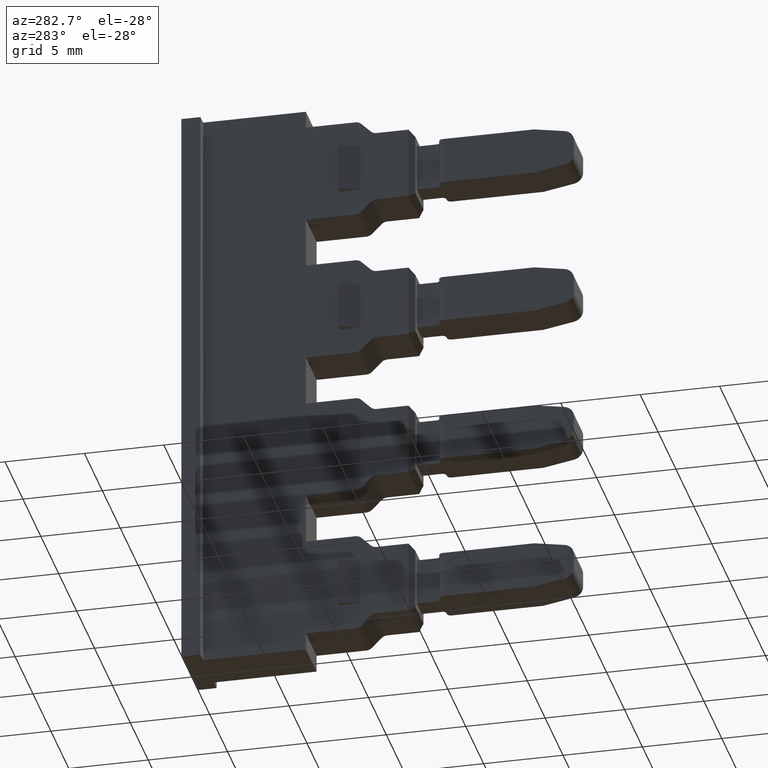
[diagram: clean part render]
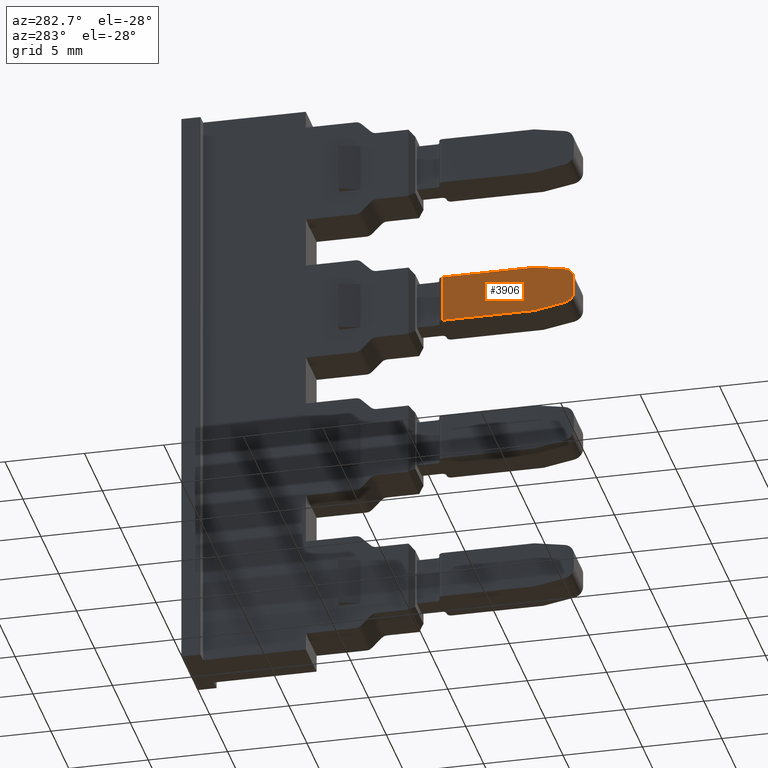
[diagram: same view with one face highlighted and labeled with its STEP entity id]
A machine part, auxiliary view. The second image highlights one B-rep face of the part: STEP entity #3906.
In plain terms, the highlighted planar face has unit normal (1, 0, 0).
Its self-contained STEP definition (entity closure, byte-faithful):
#508 = EDGE_LOOP ( 'NONE', ( #1287, #1284, #1301, #1322, #1326, #1295, #1290, #1317 ) ) ;
#1284 = ORIENTED_EDGE ( 'NONE', *, *, #3497, .F. ) ;
#1287 = ORIENTED_EDGE ( 'NONE', *, *, #3561, .F. ) ;
#1290 = ORIENTED_EDGE ( 'NONE', *, *, #3548, .F. ) ;
#1295 = ORIENTED_EDGE ( 'NONE', *, *, #3563, .F. ) ;
#1301 = ORIENTED_EDGE ( 'NONE', *, *, #3471, .F. ) ;
#1317 = ORIENTED_EDGE ( 'NONE', *, *, #3562, .F. ) ;
#1322 = ORIENTED_EDGE ( 'NONE', *, *, #3468, .F. ) ;
#1326 = ORIENTED_EDGE ( 'NONE', *, *, #3533, .T. ) ;
#1611 = VERTEX_POINT ( 'NONE', #1937 ) ;
#1618 = VERTEX_POINT ( 'NONE', #1910 ) ;
#1649 = VERTEX_POINT ( 'NONE', #1993 ) ;
#1658 = VERTEX_POINT ( 'NONE', #2030 ) ;
#1684 = VERTEX_POINT ( 'NONE', #1987 ) ;
#1686 = VERTEX_POINT ( 'NONE', #2007 ) ;
#1691 = VERTEX_POINT ( 'NONE', #2017 ) ;
#1697 = VERTEX_POINT ( 'NONE', #2026 ) ;
#1910 = CARTESIAN_POINT ( 'NONE',  ( 109.4251171002644600, 225.8069065328585300, 41.03482381499117800 ) ) ;
#1937 = CARTESIAN_POINT ( 'NONE',  ( 109.4251171002644400, 225.8069065328585300, 41.97844942780033500 ) ) ;
#1987 = CARTESIAN_POINT ( 'NONE',  ( 109.4251171002642300, 228.3069065328595600, 43.00663662139585600 ) ) ;
#1993 = CARTESIAN_POINT ( 'NONE',  ( 109.4251171002644200, 226.3853528084917500, 42.66781485490891900 ) ) ;
#2007 = CARTESIAN_POINT ( 'NONE',  ( 109.4251171002637500, 234.0815789080008600, 43.00663662139593400 ) ) ;
#2017 = CARTESIAN_POINT ( 'NONE',  ( 109.4251171002642600, 228.3069065328583300, 40.00663662139602600 ) ) ;
#2026 = CARTESIAN_POINT ( 'NONE',  ( 109.4251171002644400, 226.3853528084916000, 40.34545838788263700 ) ) ;
#2030 = CARTESIAN_POINT ( 'NONE',  ( 109.4251171002637800, 234.0815789080008600, 40.00663662139597700 ) ) ;
#2948 = FACE_OUTER_BOUND ( 'NONE', #508, .T. ) ;
#2955 = CARTESIAN_POINT ( 'NONE',  ( 109.4251171002638800, 234.7827890380838200, 18.83752599205733300 ) ) ;
#2957 = DIRECTION ( 'NONE',  ( 1.000000000000000000, 8.429940185974499800E-014, 7.193572994222956300E-015 ) ) ;
#2958 = DIRECTION ( 'NONE',  ( -8.429940185974499800E-014, 1.000000000000000000, 0.0000000000000000000 ) ) ;
#2960 = PLANE ( 'NONE',  #5674 ) ;
#3468 = EDGE_CURVE ( 'NONE', #1618, #1697, #5842, .T. ) ;
#3471 = EDGE_CURVE ( 'NONE', #1697, #1691, #4753, .T. ) ;
#3497 = EDGE_CURVE ( 'NONE', #1691, #1658, #4793, .T. ) ;
#3533 = EDGE_CURVE ( 'NONE', #1618, #1611, #4880, .T. ) ;
#3548 = EDGE_CURVE ( 'NONE', #1684, #1649, #4957, .T. ) ;
#3561 = EDGE_CURVE ( 'NONE', #1658, #1686, #4996, .T. ) ;
#3562 = EDGE_CURVE ( 'NONE', #1686, #1684, #5015, .T. ) ;
#3563 = EDGE_CURVE ( 'NONE', #1649, #1611, #5311, .T. ) ;
#3906 = ADVANCED_FACE ( 'NONE', ( #2948 ), #2960, .F. ) ;
#4743 = DIRECTION ( 'NONE',  ( -8.534938901464416100E-014, 0.9848077530122113500, -0.1736481776669117900 ) ) ;
#4747 = CARTESIAN_POINT ( 'NONE',  ( 109.4251171002644400, 226.5069065328585500, 41.03482381499117100 ) ) ;
#4748 = CARTESIAN_POINT ( 'NONE',  ( 109.4251171002644300, 226.3853528084914600, 40.34545838788265800 ) ) ;
#4751 = DIRECTION ( 'NONE',  ( 1.982541115402047700E-014, -1.000000000000000000, 0.0000000000000000000 ) ) ;
#4753 = LINE ( 'NONE', #4748, #5806 ) ;
#4770 = DIRECTION ( 'NONE',  ( 1.000000000000000000, 2.643655590711540000E-014, 7.193572994224081300E-015 ) ) ;
#4793 = LINE ( 'NONE', #4804, #5160 ) ;
#4804 = CARTESIAN_POINT ( 'NONE',  ( 109.4251171002637200, 234.7827890380838200, 40.00663662139597700 ) ) ;
#4864 = DIRECTION ( 'NONE',  ( -8.429940185974499800E-014, 1.000000000000000000, 0.0000000000000000000 ) ) ;
#4880 = LINE ( 'NONE', #4932, #5258 ) ;
#4923 = CARTESIAN_POINT ( 'NONE',  ( 109.4251171002642300, 228.3069065328593600, 43.00663662139592700 ) ) ;
#4932 = CARTESIAN_POINT ( 'NONE',  ( 109.4251171002644600, 225.8069065328585300, 41.97844942780043500 ) ) ;
#4945 = DIRECTION ( 'NONE',  ( -1.027851262480033000E-041, 3.887992316742691900E-028, 1.000000000000000000 ) ) ;
#4957 = LINE ( 'NONE', #4923, #5249 ) ;
#4978 = DIRECTION ( 'NONE',  ( 9.246183809914414100E-014, -0.9848077530121941400, -0.1736481776670100700 ) ) ;
#4996 = LINE ( 'NONE', #5030, #5235 ) ;
#5008 = DIRECTION ( 'NONE',  ( 8.429940185974499800E-014, -1.000000000000000000, -0.0000000000000000000 ) ) ;
#5011 = DIRECTION ( 'NONE',  ( -7.193572994222956300E-015, 5.441398086522723700E-029, 1.000000000000000000 ) ) ;
#5015 = LINE ( 'NONE', #5040, #5319 ) ;
#5026 = DIRECTION ( 'NONE',  ( 1.982541115402047700E-014, -1.000000000000000000, 0.0000000000000000000 ) ) ;
#5030 = CARTESIAN_POINT ( 'NONE',  ( 109.4251171002639200, 234.0815789080008600, 18.83752599205733000 ) ) ;
#5034 = DIRECTION ( 'NONE',  ( 1.000000000000000000, 2.643655590711540000E-014, 7.193572994224081300E-015 ) ) ;
#5036 = CARTESIAN_POINT ( 'NONE',  ( 109.4251171002644200, 226.5069065328585500, 41.97844942780035600 ) ) ;
#5040 = CARTESIAN_POINT ( 'NONE',  ( 109.4251171002636900, 234.7827890380838200, 43.00663662139592700 ) ) ;
#5160 = VECTOR ( 'NONE', #4864, 1000.000000000000000 ) ;
#5235 = VECTOR ( 'NONE', #5011, 1000.000000000000000 ) ;
#5249 = VECTOR ( 'NONE', #4978, 999.9999999999998900 ) ;
#5258 = VECTOR ( 'NONE', #4945, 1000.000000000000000 ) ;
#5311 = CIRCLE ( 'NONE', #5322, 0.7000000000000061700 ) ;
#5319 = VECTOR ( 'NONE', #5008, 1000.000000000000000 ) ;
#5322 = AXIS2_PLACEMENT_3D ( 'NONE', #5036, #5034, #5026 ) ;
#5674 = AXIS2_PLACEMENT_3D ( 'NONE', #2955, #2957, #2958 ) ;
#5806 = VECTOR ( 'NONE', #4743, 1000.000000000000100 ) ;
#5832 = AXIS2_PLACEMENT_3D ( 'NONE', #4747, #4770, #4751 ) ;
#5842 = CIRCLE ( 'NONE', #5832, 0.7000000000000061700 ) ;